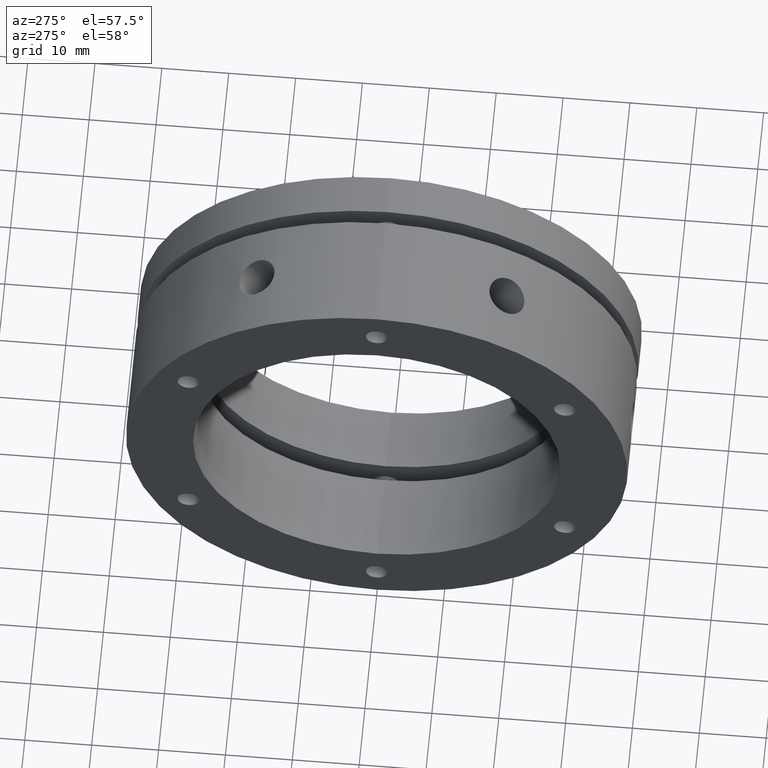
[diagram: clean part render]
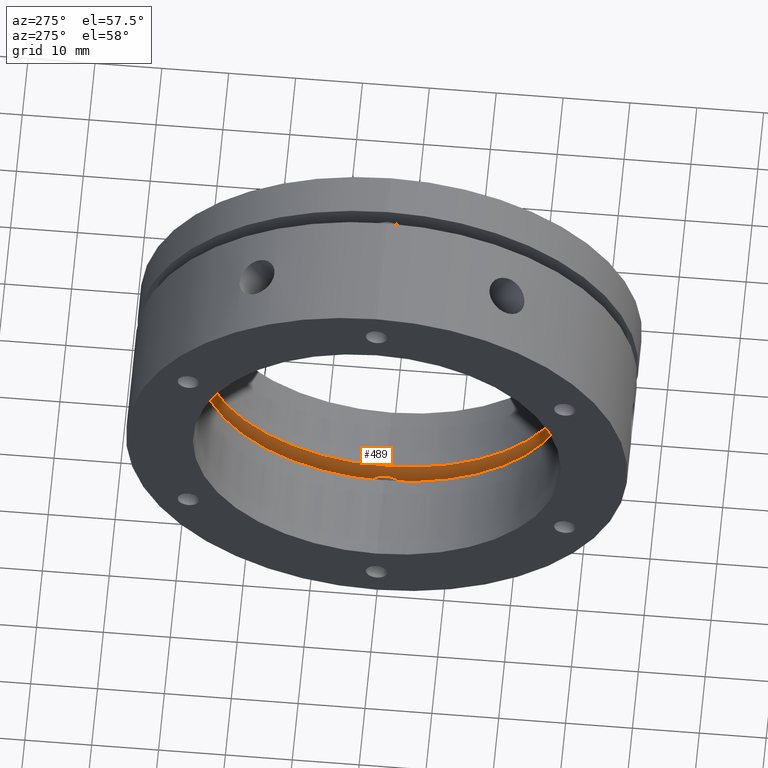
[diagram: same view with one face highlighted and labeled with its STEP entity id]
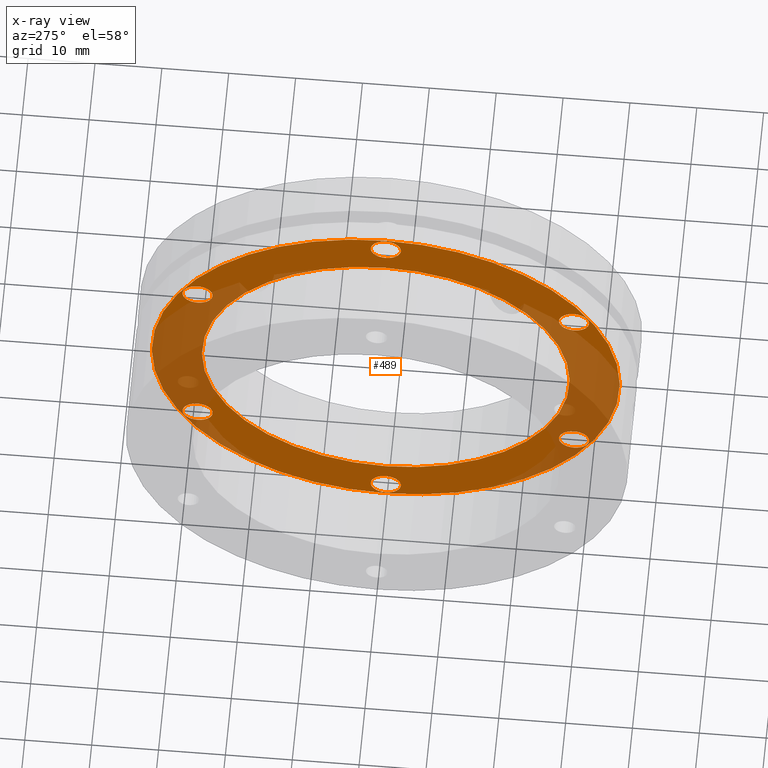
[diagram: x-ray of the same camera — body ghosted, the highlighted face saturated]
A machine part, auxiliary view. The second image highlights one B-rep face of the part: STEP entity #489.
The next image is the same camera in x-ray: the body ghosted, the highlighted face saturated — about 37% of this face is hidden behind the body in this view.
In plain terms, the highlighted planar face has unit normal (1, 0, 0).
Its self-contained STEP definition (entity closure, byte-faithful):
#36 = EDGE_LOOP ( 'NONE', ( #777, #776 ) ) ;
#37 = EDGE_LOOP ( 'NONE', ( #773, #772 ) ) ;
#39 = EDGE_LOOP ( 'NONE', ( #769, #768 ) ) ;
#40 = EDGE_LOOP ( 'NONE', ( #765, #764 ) ) ;
#489 = ADVANCED_FACE ( 'NONE', ( #3495, #3499, #3496, #3498, #3497, #3500, #3501, #3502 ), #4426, .F. ) ;
#692 = EDGE_CURVE ( 'NONE', #1013, #1012, #3736, .T. ) ;
#693 = EDGE_CURVE ( 'NONE', #992, #991, #3735, .T. ) ;
#697 = EDGE_CURVE ( 'NONE', #1008, #1007, #3743, .T. ) ;
#698 = EDGE_CURVE ( 'NONE', #996, #995, #3742, .T. ) ;
#764 = ORIENTED_EDGE ( 'NONE', *, *, #3854, .F. ) ;
#765 = ORIENTED_EDGE ( 'NONE', *, *, #693, .F. ) ;
#766 = ORIENTED_EDGE ( 'NONE', *, *, #698, .T. ) ;
#767 = ORIENTED_EDGE ( 'NONE', *, *, #3839, .T. ) ;
#768 = ORIENTED_EDGE ( 'NONE', *, *, #4085, .T. ) ;
#769 = ORIENTED_EDGE ( 'NONE', *, *, #3840, .T. ) ;
#770 = ORIENTED_EDGE ( 'NONE', *, *, #1155, .T. ) ;
#771 = ORIENTED_EDGE ( 'NONE', *, *, #3841, .T. ) ;
#772 = ORIENTED_EDGE ( 'NONE', *, *, #697, .T. ) ;
#773 = ORIENTED_EDGE ( 'NONE', *, *, #3842, .T. ) ;
#774 = ORIENTED_EDGE ( 'NONE', *, *, #692, .T. ) ;
#775 = ORIENTED_EDGE ( 'NONE', *, *, #3843, .T. ) ;
#776 = ORIENTED_EDGE ( 'NONE', *, *, #4698, .T. ) ;
#777 = ORIENTED_EDGE ( 'NONE', *, *, #3844, .T. ) ;
#778 = ORIENTED_EDGE ( 'NONE', *, *, #3869, .F. ) ;
#779 = ORIENTED_EDGE ( 'NONE', *, *, #3983, .F. ) ;
#959 = VERTEX_POINT ( 'NONE', #1871 ) ;
#960 = VERTEX_POINT ( 'NONE', #1872 ) ;
#991 = VERTEX_POINT ( 'NONE', #1903 ) ;
#992 = VERTEX_POINT ( 'NONE', #1904 ) ;
#995 = VERTEX_POINT ( 'NONE', #1907 ) ;
#996 = VERTEX_POINT ( 'NONE', #1908 ) ;
#999 = VERTEX_POINT ( 'NONE', #1911 ) ;
#1000 = VERTEX_POINT ( 'NONE', #1912 ) ;
#1003 = VERTEX_POINT ( 'NONE', #1915 ) ;
#1004 = VERTEX_POINT ( 'NONE', #1916 ) ;
#1007 = VERTEX_POINT ( 'NONE', #1919 ) ;
#1008 = VERTEX_POINT ( 'NONE', #1920 ) ;
#1012 = VERTEX_POINT ( 'NONE', #1924 ) ;
#1013 = VERTEX_POINT ( 'NONE', #1925 ) ;
#1016 = VERTEX_POINT ( 'NONE', #1928 ) ;
#1023 = VERTEX_POINT ( 'NONE', #1935 ) ;
#1155 = EDGE_CURVE ( 'NONE', #1004, #1003, #2589, .T. ) ;
#1184 = AXIS2_PLACEMENT_3D ( 'NONE', #2065, #2066, #2067 ) ;
#1191 = AXIS2_PLACEMENT_3D ( 'NONE', #2145, #2146, #2148 ) ;
#1192 = AXIS2_PLACEMENT_3D ( 'NONE', #2150, #2151, #2152 ) ;
#1193 = AXIS2_PLACEMENT_3D ( 'NONE', #2154, #2155, #2156 ) ;
#1194 = AXIS2_PLACEMENT_3D ( 'NONE', #2157, #2158, #2159 ) ;
#1195 = AXIS2_PLACEMENT_3D ( 'NONE', #2160, #2161, #2162 ) ;
#1196 = AXIS2_PLACEMENT_3D ( 'NONE', #2165, #2166, #2167 ) ;
#1206 = AXIS2_PLACEMENT_3D ( 'NONE', #2206, #2207, #2209 ) ;
#1221 = AXIS2_PLACEMENT_3D ( 'NONE', #2301, #2303, #2304 ) ;
#1796 = CARTESIAN_POINT ( 'NONE',  ( 15.49999999999998900, -28.14582562299427300, 16.25000000000001400 ) ) ;
#1797 = DIRECTION ( 'NONE',  ( 1.000000000000000000, 0.0000000000000000000, 0.0000000000000000000 ) ) ;
#1798 = DIRECTION ( 'NONE',  ( 0.0000000000000000000, 0.0000000000000000000, -1.000000000000000000 ) ) ;
#1799 = CARTESIAN_POINT ( 'NONE',  ( 15.50000000000000400, 0.0000000000000000000, 0.0000000000000000000 ) ) ;
#1800 = DIRECTION ( 'NONE',  ( 1.000000000000000000, -0.0000000000000000000, -0.0000000000000000000 ) ) ;
#1801 = DIRECTION ( 'NONE',  ( 0.0000000000000000000, 0.0000000000000000000, 1.000000000000000000 ) ) ;
#1808 = CARTESIAN_POINT ( 'NONE',  ( 15.49999999999998900, -28.14582562299427700, -16.25000000000000400 ) ) ;
#1809 = DIRECTION ( 'NONE',  ( 1.000000000000000000, 0.0000000000000000000, 0.0000000000000000000 ) ) ;
#1810 = DIRECTION ( 'NONE',  ( 0.0000000000000000000, 0.0000000000000000000, -1.000000000000000000 ) ) ;
#1813 = CARTESIAN_POINT ( 'NONE',  ( 15.49999999999998900, 28.14582562299428800, 16.24999999999998600 ) ) ;
#1814 = DIRECTION ( 'NONE',  ( 1.000000000000000000, 0.0000000000000000000, 0.0000000000000000000 ) ) ;
#1815 = DIRECTION ( 'NONE',  ( 0.0000000000000000000, 0.0000000000000000000, -1.000000000000000000 ) ) ;
#1871 = CARTESIAN_POINT ( 'NONE',  ( 15.50000000000000500, 3.367778697655221300E-015, 27.50000000000000000 ) ) ;
#1872 = CARTESIAN_POINT ( 'NONE',  ( 15.50000000000000500, 0.0000000000000000000, -27.50000000000000000 ) ) ;
#1903 = CARTESIAN_POINT ( 'NONE',  ( 15.50000000000000400, 4.286263797015737300E-015, -35.00000000000000700 ) ) ;
#1904 = CARTESIAN_POINT ( 'NONE',  ( 15.50000000000000400, 0.0000000000000000000, 35.00000000000000700 ) ) ;
#1907 = CARTESIAN_POINT ( 'NONE',  ( 15.49999999999998900, 28.14582562299428800, 13.99999999999998600 ) ) ;
#1908 = CARTESIAN_POINT ( 'NONE',  ( 15.49999999999998900, 28.14582562299428800, 18.49999999999998900 ) ) ;
#1911 = CARTESIAN_POINT ( 'NONE',  ( 15.49999999999998900, 28.14582562299426600, -18.50000000000002500 ) ) ;
#1912 = CARTESIAN_POINT ( 'NONE',  ( 15.49999999999998900, 28.14582562299426600, -14.00000000000002500 ) ) ;
#1915 = CARTESIAN_POINT ( 'NONE',  ( 15.49999999999998900, -2.220446000000000000E-015, -34.75000000000001400 ) ) ;
#1916 = CARTESIAN_POINT ( 'NONE',  ( 15.49999999999998900, -1.944900470191845500E-015, -30.25000000000001400 ) ) ;
#1919 = CARTESIAN_POINT ( 'NONE',  ( 15.49999999999998900, -28.14582562299427700, -18.50000000000000400 ) ) ;
#1920 = CARTESIAN_POINT ( 'NONE',  ( 15.49999999999998900, -28.14582562299427700, -14.00000000000000400 ) ) ;
#1924 = CARTESIAN_POINT ( 'NONE',  ( 15.49999999999998900, -28.14582562299427300, 14.00000000000001400 ) ) ;
#1925 = CARTESIAN_POINT ( 'NONE',  ( 15.49999999999998900, -28.14582562299427300, 18.50000000000001800 ) ) ;
#1928 = CARTESIAN_POINT ( 'NONE',  ( 15.49999999999998900, 0.0000000000000000000, 30.25000000000001400 ) ) ;
#1935 = CARTESIAN_POINT ( 'NONE',  ( 15.49999999999998900, 2.755455298081542800E-016, 34.75000000000001400 ) ) ;
#2065 = CARTESIAN_POINT ( 'NONE',  ( 15.49999999999998900, -2.220446000000000000E-015, -32.50000000000001400 ) ) ;
#2066 = DIRECTION ( 'NONE',  ( 1.000000000000000000, 0.0000000000000000000, 0.0000000000000000000 ) ) ;
#2067 = DIRECTION ( 'NONE',  ( 0.0000000000000000000, 0.0000000000000000000, -1.000000000000000000 ) ) ;
#2145 = CARTESIAN_POINT ( 'NONE',  ( 15.49999999999998900, 28.14582562299428800, 16.24999999999998600 ) ) ;
#2146 = DIRECTION ( 'NONE',  ( 1.000000000000000000, 0.0000000000000000000, 0.0000000000000000000 ) ) ;
#2148 = DIRECTION ( 'NONE',  ( 0.0000000000000000000, 0.0000000000000000000, -1.000000000000000000 ) ) ;
#2150 = CARTESIAN_POINT ( 'NONE',  ( 15.49999999999998900, 28.14582562299426600, -16.25000000000002500 ) ) ;
#2151 = DIRECTION ( 'NONE',  ( 1.000000000000000000, 0.0000000000000000000, 0.0000000000000000000 ) ) ;
#2152 = DIRECTION ( 'NONE',  ( 0.0000000000000000000, 0.0000000000000000000, -1.000000000000000000 ) ) ;
#2154 = CARTESIAN_POINT ( 'NONE',  ( 15.49999999999998900, -2.220446000000000000E-015, -32.50000000000001400 ) ) ;
#2155 = DIRECTION ( 'NONE',  ( 1.000000000000000000, 0.0000000000000000000, 0.0000000000000000000 ) ) ;
#2156 = DIRECTION ( 'NONE',  ( 0.0000000000000000000, 0.0000000000000000000, -1.000000000000000000 ) ) ;
#2157 = CARTESIAN_POINT ( 'NONE',  ( 15.49999999999998900, -28.14582562299427700, -16.25000000000000400 ) ) ;
#2158 = DIRECTION ( 'NONE',  ( 1.000000000000000000, 0.0000000000000000000, 0.0000000000000000000 ) ) ;
#2159 = DIRECTION ( 'NONE',  ( 0.0000000000000000000, 0.0000000000000000000, -1.000000000000000000 ) ) ;
#2160 = CARTESIAN_POINT ( 'NONE',  ( 15.49999999999998900, -28.14582562299427300, 16.25000000000001400 ) ) ;
#2161 = DIRECTION ( 'NONE',  ( 1.000000000000000000, 0.0000000000000000000, 0.0000000000000000000 ) ) ;
#2162 = DIRECTION ( 'NONE',  ( 0.0000000000000000000, 0.0000000000000000000, -1.000000000000000000 ) ) ;
#2165 = CARTESIAN_POINT ( 'NONE',  ( 15.49999999999998900, 0.0000000000000000000, 32.50000000000001400 ) ) ;
#2166 = DIRECTION ( 'NONE',  ( 1.000000000000000000, 0.0000000000000000000, 0.0000000000000000000 ) ) ;
#2167 = DIRECTION ( 'NONE',  ( 0.0000000000000000000, 0.0000000000000000000, -1.000000000000000000 ) ) ;
#2206 = CARTESIAN_POINT ( 'NONE',  ( 15.50000000000000400, 0.0000000000000000000, 0.0000000000000000000 ) ) ;
#2207 = DIRECTION ( 'NONE',  ( 1.000000000000000000, -0.0000000000000000000, -0.0000000000000000000 ) ) ;
#2209 = DIRECTION ( 'NONE',  ( 0.0000000000000000000, 0.0000000000000000000, 1.000000000000000000 ) ) ;
#2301 = CARTESIAN_POINT ( 'NONE',  ( 15.50000000000000500, 0.0000000000000000000, 0.0000000000000000000 ) ) ;
#2303 = DIRECTION ( 'NONE',  ( -1.000000000000000000, -0.0000000000000000000, -0.0000000000000000000 ) ) ;
#2304 = DIRECTION ( 'NONE',  ( 0.0000000000000000000, 0.0000000000000000000, -1.000000000000000000 ) ) ;
#2410 = CARTESIAN_POINT ( 'NONE',  ( 15.50000000000000500, 0.0000000000000000000, 0.0000000000000000000 ) ) ;
#2411 = DIRECTION ( 'NONE',  ( -1.000000000000000000, -0.0000000000000000000, -0.0000000000000000000 ) ) ;
#2413 = DIRECTION ( 'NONE',  ( 0.0000000000000000000, 0.0000000000000000000, -1.000000000000000000 ) ) ;
#2529 = CARTESIAN_POINT ( 'NONE',  ( 15.49999999999998900, 28.14582562299426600, -16.25000000000002500 ) ) ;
#2530 = DIRECTION ( 'NONE',  ( 1.000000000000000000, 0.0000000000000000000, 0.0000000000000000000 ) ) ;
#2531 = DIRECTION ( 'NONE',  ( 0.0000000000000000000, 0.0000000000000000000, -1.000000000000000000 ) ) ;
#2589 = CIRCLE ( 'NONE', #1184, 2.250000000000001800 ) ;
#2605 = CIRCLE ( 'NONE', #1193, 2.250000000000001800 ) ;
#2606 = CIRCLE ( 'NONE', #1192, 2.249999999999998700 ) ;
#2607 = CIRCLE ( 'NONE', #1194, 2.249999999999998700 ) ;
#2609 = CIRCLE ( 'NONE', #1195, 2.250000000000000400 ) ;
#2610 = CIRCLE ( 'NONE', #1191, 2.250000000000000400 ) ;
#2612 = CIRCLE ( 'NONE', #1196, 2.250000000000001800 ) ;
#2622 = CIRCLE ( 'NONE', #1206, 35.00000000000000700 ) ;
#2637 = CIRCLE ( 'NONE', #1221, 27.50000000000000000 ) ;
#2650 = CIRCLE ( 'NONE', #4016, 27.50000000000000000 ) ;
#2714 = CIRCLE ( 'NONE', #4033, 2.249999999999998700 ) ;
#2743 = CIRCLE ( 'NONE', #4052, 2.250000000000001800 ) ;
#2854 = CARTESIAN_POINT ( 'NONE',  ( 15.49999999999998900, 0.0000000000000000000, 32.50000000000001400 ) ) ;
#2855 = DIRECTION ( 'NONE',  ( 1.000000000000000000, 0.0000000000000000000, 0.0000000000000000000 ) ) ;
#2856 = DIRECTION ( 'NONE',  ( 0.0000000000000000000, 0.0000000000000000000, -1.000000000000000000 ) ) ;
#3203 = AXIS2_PLACEMENT_3D ( 'NONE', #4424, #4422, #4428 ) ;
#3495 = FACE_BOUND ( 'NONE', #3886, .T. ) ;
#3496 = FACE_BOUND ( 'NONE', #3899, .T. ) ;
#3497 = FACE_BOUND ( 'NONE', #3885, .T. ) ;
#3498 = FACE_BOUND ( 'NONE', #37, .T. ) ;
#3499 = FACE_BOUND ( 'NONE', #36, .T. ) ;
#3500 = FACE_BOUND ( 'NONE', #39, .T. ) ;
#3501 = FACE_BOUND ( 'NONE', #3889, .T. ) ;
#3502 = FACE_OUTER_BOUND ( 'NONE', #40, .T. ) ;
#3735 = CIRCLE ( 'NONE', #3957, 35.00000000000000700 ) ;
#3736 = CIRCLE ( 'NONE', #3956, 2.250000000000000400 ) ;
#3742 = CIRCLE ( 'NONE', #3960, 2.250000000000000400 ) ;
#3743 = CIRCLE ( 'NONE', #3959, 2.249999999999998700 ) ;
#3839 = EDGE_CURVE ( 'NONE', #995, #996, #2610, .T. ) ;
#3840 = EDGE_CURVE ( 'NONE', #999, #1000, #2606, .T. ) ;
#3841 = EDGE_CURVE ( 'NONE', #1003, #1004, #2605, .T. ) ;
#3842 = EDGE_CURVE ( 'NONE', #1007, #1008, #2607, .T. ) ;
#3843 = EDGE_CURVE ( 'NONE', #1012, #1013, #2609, .T. ) ;
#3844 = EDGE_CURVE ( 'NONE', #1016, #1023, #2612, .T. ) ;
#3854 = EDGE_CURVE ( 'NONE', #991, #992, #2622, .T. ) ;
#3869 = EDGE_CURVE ( 'NONE', #959, #960, #2637, .T. ) ;
#3885 = EDGE_LOOP ( 'NONE', ( #771, #770 ) ) ;
#3886 = EDGE_LOOP ( 'NONE', ( #779, #778 ) ) ;
#3889 = EDGE_LOOP ( 'NONE', ( #767, #766 ) ) ;
#3899 = EDGE_LOOP ( 'NONE', ( #775, #774 ) ) ;
#3956 = AXIS2_PLACEMENT_3D ( 'NONE', #1796, #1797, #1798 ) ;
#3957 = AXIS2_PLACEMENT_3D ( 'NONE', #1799, #1800, #1801 ) ;
#3959 = AXIS2_PLACEMENT_3D ( 'NONE', #1808, #1809, #1810 ) ;
#3960 = AXIS2_PLACEMENT_3D ( 'NONE', #1813, #1814, #1815 ) ;
#3983 = EDGE_CURVE ( 'NONE', #960, #959, #2650, .T. ) ;
#4016 = AXIS2_PLACEMENT_3D ( 'NONE', #2410, #2411, #2413 ) ;
#4033 = AXIS2_PLACEMENT_3D ( 'NONE', #2529, #2530, #2531 ) ;
#4052 = AXIS2_PLACEMENT_3D ( 'NONE', #2854, #2855, #2856 ) ;
#4085 = EDGE_CURVE ( 'NONE', #1000, #999, #2714, .T. ) ;
#4422 = DIRECTION ( 'NONE',  ( 1.000000000000000000, -0.0000000000000000000, 0.0000000000000000000 ) ) ;
#4424 = CARTESIAN_POINT ( 'NONE',  ( 15.50000000000000500, 17.50000000000000400, 0.0000000000000000000 ) ) ;
#4426 = PLANE ( 'NONE',  #3203 ) ;
#4428 = DIRECTION ( 'NONE',  ( 0.0000000000000000000, 0.0000000000000000000, -1.000000000000000000 ) ) ;
#4698 = EDGE_CURVE ( 'NONE', #1023, #1016, #2743, .T. ) ;